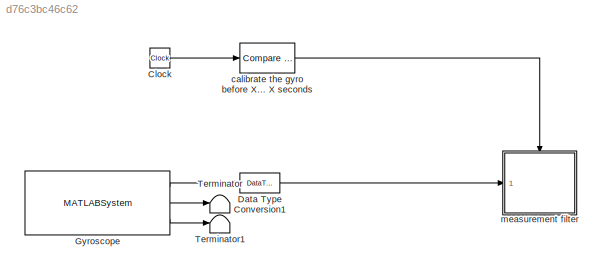
MODEL slx_d76c3bc46c62
KIND model
CONFIG AbsTol = auto
CONFIG EnableMultiTasking = on
CONFIG FixedStep = auto
CONFIG MaxStep = auto
CONFIG MinStep = auto
CONFIG RelTol = 1e-3
CONFIG SampleTimeConstraint = Unconstrained
CONFIG Solver = ode45
CONFIG SolverName = ode45
CONFIG StartTime = 0.0
CONFIG StopTime = 10.0
BLOCK [Clock] Clock
BLOCK [DataTypeConversion] Data Type Conversion1
  OutDataTypeStr = double
  RndMeth = Floor
  SaturateOnIntegerOverflow = off
BLOCK [MATLABSystem] Gyroscope
  DLPFmode = 0
  MaskDisplay = disp('soMPU6050Gyro');\nport_label('output',1,'xvel');\nport_label('output',2,'yvel');\nport_label('output',3,'zvel');
  MaskType = soMPU6050Gyro
  Ports = [0, 3]
  System = soMPU6050Gyro
BLOCK [Terminator] Terminator
BLOCK [Terminator] Terminator1
BLOCK [Reference] calibrate the gyro before X seconds, start controlling after X seconds  REF=simulink/Logic and Bit
Operations/Compare
To Constant
  Ports = [1, 1]
  SourceBlock = simulink/Logic and Bit\nOperations/Compare\nTo Constant
  SourceProductBaseCode = SL
  SourceType = Compare To Constant
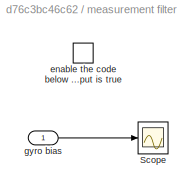
BLOCK [SubSystem] measurement filter
  Ports = [1, 0, 1]
  RequestExecContextInheritance = off
BLOCK [Scope] measurement filter/Scope
  Floating = off
  NumInputPorts = 1
  Ports = [1]
  ScopeSpecificationString = Simulink.scopes.TimeScopeBlockCfg('CurrentConfiguration', extmgr.ConfigurationSet(extmgr.Configuration('Core','General UI',true),extmgr.Configuration('Core','Source UI',true),extmgr.Configuration('Sources','WiredSimulink',true,'DataLogging',true,'DataLoggingVariableName','afGyroBias','DataLoggingSaveFormat','StructureWithTime','DataLoggingDecimation','1','DataLoggingDecimateData',true),extmgr.Conf...<+1700ch>
BLOCK [EnablePort] measurement filter/enable the code below only when the external boolean input is true 
  Ports = []
BLOCK [Inport] measurement filter/gyro bias
LINE Clock:1 -> calibrate the gyro before X seconds, start controlling after X seconds:1
LINE Data Type Conversion1:1 -> measurement filter:1
LINE Gyroscope:1 -> Data Type Conversion1:1
LINE Gyroscope:2 -> Terminator:1
LINE Gyroscope:3 -> Terminator1:1
LINE calibrate the gyro before X seconds, start controlling after X seconds:1 -> measurement filter:enable
LINE measurement filter/gyro bias:1 -> measurement filter/Scope:1
